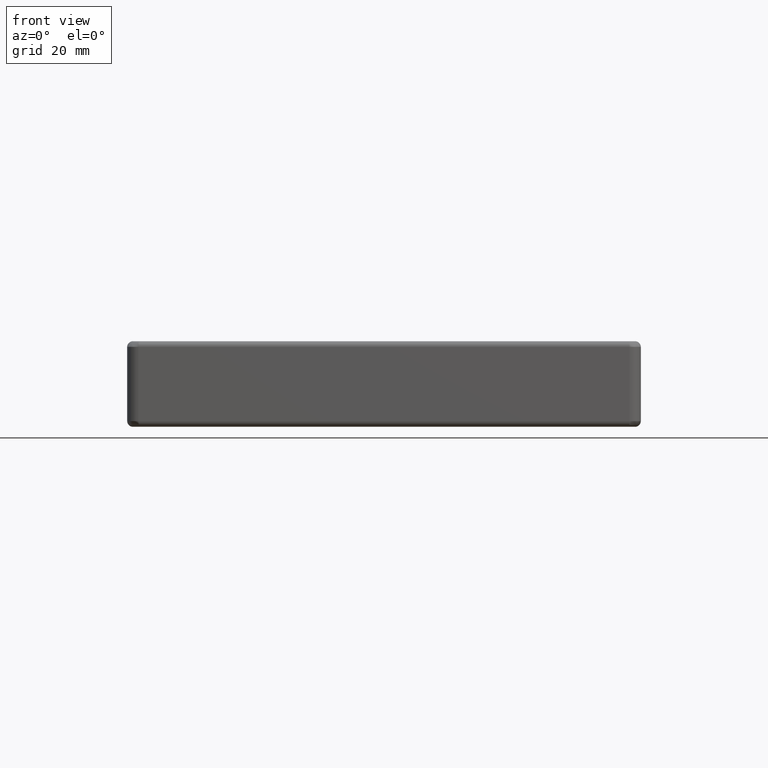
[diagram: clean part render]
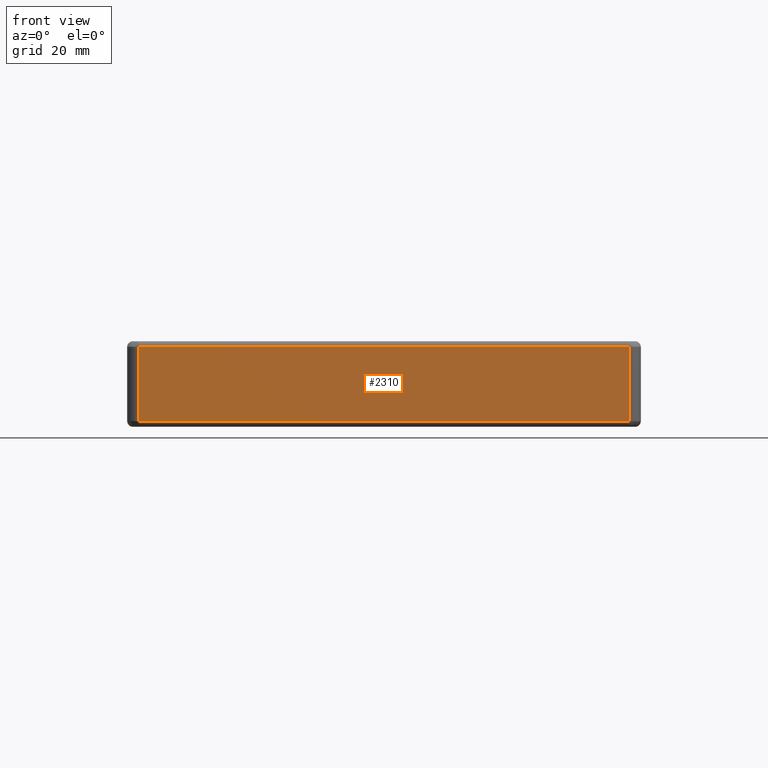
[diagram: same view with one face highlighted and labeled with its STEP entity id]
A machine part, front view. The second image highlights one B-rep face of the part: STEP entity #2310.
In plain terms, the highlighted planar face has unit normal (0, -1, 0).
Its self-contained STEP definition (entity closure, byte-faithful):
#106=PLANE('',#2611);
#238=FACE_OUTER_BOUND('',#414,.T.);
#414=EDGE_LOOP('',(#2085,#2086,#2087,#2088));
#550=LINE('',#4078,#702);
#552=LINE('',#4082,#704);
#557=LINE('',#4089,#709);
#559=LINE('',#4092,#711);
#702=VECTOR('',#3315,86.);
#704=VECTOR('',#3321,13.);
#709=VECTOR('',#3330,86.);
#711=VECTOR('',#3334,13.);
#1108=VERTEX_POINT('',#4013);
#1112=VERTEX_POINT('',#4041);
#1114=VERTEX_POINT('',#4055);
#1118=VERTEX_POINT('',#4072);
#1427=EDGE_CURVE('',#1118,#1112,#550,.T.);
#1429=EDGE_CURVE('',#1114,#1118,#552,.T.);
#1434=EDGE_CURVE('',#1108,#1114,#557,.T.);
#1436=EDGE_CURVE('',#1112,#1108,#559,.T.);
#2085=ORIENTED_EDGE('',*,*,#1427,.F.);
#2086=ORIENTED_EDGE('',*,*,#1429,.F.);
#2087=ORIENTED_EDGE('',*,*,#1434,.F.);
#2088=ORIENTED_EDGE('',*,*,#1436,.F.);
#2310=ADVANCED_FACE('',(#238),#106,.T.);
#2611=AXIS2_PLACEMENT_3D('',#4110,#3359,#3360);
#3315=DIRECTION('',(1.,0.,0.));
#3321=DIRECTION('',(0.,0.,1.));
#3330=DIRECTION('',(-1.,0.,0.));
#3334=DIRECTION('',(0.,0.,-1.));
#3359=DIRECTION('center_axis',(0.,-1.,0.));
#3360=DIRECTION('ref_axis',(-1.,0.,0.));
#4013=CARTESIAN_POINT('',(43.,-45.,-14.));
#4041=CARTESIAN_POINT('',(43.,-45.,-1.));
#4055=CARTESIAN_POINT('',(-43.,-45.,-14.));
#4072=CARTESIAN_POINT('',(-43.,-45.,-1.));
#4078=CARTESIAN_POINT('',(22.5,-45.,-1.));
#4082=CARTESIAN_POINT('',(-43.,-45.,0.));
#4089=CARTESIAN_POINT('',(22.5,-45.,-14.));
#4092=CARTESIAN_POINT('',(43.,-45.,0.));
#4110=CARTESIAN_POINT('Origin',(45.,-45.,0.));